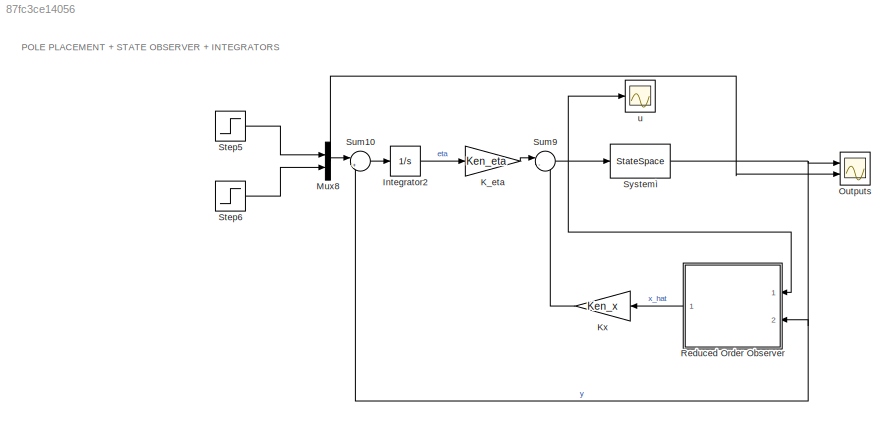
MODEL slx_87fc3ce14056
KIND model
CONFIG AbsTol = auto
CONFIG EnableMultiTasking = on
CONFIG FixedStep = auto
CONFIG MaxStep = auto
CONFIG MinStep = auto
CONFIG RelTol = 1e-3
CONFIG SampleTimeConstraint = Unconstrained
CONFIG SolverName = ode15s
CONFIG StartTime = 0.0
CONFIG StopTime = 200
BLOCK [Integrator] Integrator2
  Ports = [1, 1]
BLOCK [Gain] K_eta
  Gain = Ken_eta
  Multiplication = Matrix(K*u) (u vector)
BLOCK [Gain] Kx
  Gain = Ken_x
  Multiplication = Matrix(K*u) (u vector)
BLOCK [Mux] Mux8
  DisplayOption = bar
  Inputs = 2
  Ports = [2, 1]
BLOCK [Scope] Outputs
  Floating = off
  NumInputPorts = 2
  Ports = [2]
  ScopeSpecificationString = Simulink.scopes.TimeScopeBlockCfg('CurrentConfiguration', extmgr.ConfigurationSet(extmgr.Configuration('Core','General UI',true),extmgr.Configuration('Core','Source UI',true),extmgr.Configuration('Sources','WiredSimulink',true,'DataLoggingVariableName','ScopeData5'),extmgr.Configuration('Visuals','Time Domain',true,'SerializedDisplays',{struct('MinYLimReal','-0.72916','MaxYLimReal','1.3624','YLabe...<+2009ch>
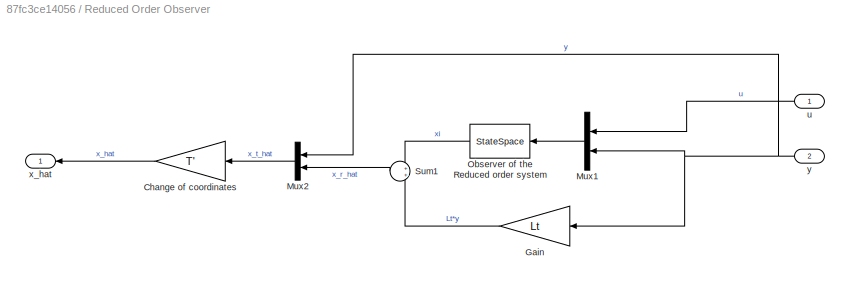
BLOCK [SubSystem] Reduced Order Observer
  Ports = [2, 1]
  RequestExecContextInheritance = off
BLOCK [Gain] Reduced Order Observer/Change of coordinates
  Gain = T'
  Multiplication = Matrix(K*u) (u vector)
BLOCK [Gain] Reduced Order Observer/Gain
  Gain = Lt
  Multiplication = Matrix(K*u) (u vector)
  NameLocation = top
BLOCK [Mux] Reduced Order Observer/Mux1
  DisplayOption = bar
  Inputs = 2
  NameLocation = top
  Ports = [2, 1]
BLOCK [Mux] Reduced Order Observer/Mux2
  DisplayOption = bar
  Inputs = 2
  NameLocation = top
  Ports = [2, 1]
BLOCK [StateSpace] Reduced Order Observer/Observer of the Reduced order system
  A = A_xi
  B = B_xi
  C = eye(5)
  D = zeros(5,4)
  InitialCondition = 0
  NameLocation = top
  Ports = [1, 1]
BLOCK [Sum] Reduced Order Observer/Sum1
  NameLocation = top
  Ports = [2, 1]
BLOCK [Inport] Reduced Order Observer/u
  NameLocation = top
BLOCK [Outport] Reduced Order Observer/x_hat
BLOCK [Inport] Reduced Order Observer/y
  NameLocation = top
  Port = 2
BLOCK [Step] Step5
  After = 1.04
  SampleTime = 0
  Time = 100
BLOCK [Step] Step6
  After = -0.52
  SampleTime = 0
  Time = 150
BLOCK [Sum] Sum10
  Inputs = |+-
  Ports = [2, 1]
BLOCK [Sum] Sum9
  Inputs = |--
  Ports = [2, 1]
BLOCK [StateSpace] Systemì
  A = A
  B = B
  C = C
  D = D
  InitialCondition = x0
  Ports = [1, 1]
BLOCK [Scope] u
  Floating = off
  NumInputPorts = 1
  Ports = [1]
  ScopeSpecificationString = Simulink.scopes.TimeScopeBlockCfg('CurrentConfiguration', extmgr.ConfigurationSet(extmgr.Configuration('Core','General UI',true),extmgr.Configuration('Core','Source UI',true),extmgr.Configuration('Sources','WiredSimulink',true,'DataLoggingVariableName','ScopeData6','DataLoggingSaveFormat','StructureWithTime','DataLoggingLimitDataPoints',true,'DataLoggingDecimation','1','DataLoggingDecimateData',tr...<+1978ch>
ANNOTATION (root): POLE PLACEMENT + STATE OBSERVER + INTEGRATORS
LINE Integrator2:1 -> K_eta:1
LINE K_eta:1 -> Sum9:1
LINE Kx:1 -> Sum9:2
NET Mux8:1 -> Outputs:2, Sum10:1
LINE Reduced Order Observer/Change of coordinates:1 -> Reduced Order Observer/x_hat:1
LINE Reduced Order Observer/Gain:1 -> Reduced Order Observer/Sum1:2
LINE Reduced Order Observer/Mux1:1 -> Reduced Order Observer/Observer of the Reduced order system:1
LINE Reduced Order Observer/Mux2:1 -> Reduced Order Observer/Change of coordinates:1
LINE Reduced Order Observer/Observer of the Reduced order system:1 -> Reduced Order Observer/Sum1:1
LINE Reduced Order Observer/Sum1:1 -> Reduced Order Observer/Mux2:2
LINE Reduced Order Observer/u:1 -> Reduced Order Observer/Mux1:1
NET Reduced Order Observer/y:1 -> Reduced Order Observer/Gain:1, Reduced Order Observer/Mux1:2, Reduced Order Observer/Mux2:1
LINE Reduced Order Observer:1 -> Kx:1
LINE Step5:1 -> Mux8:1
LINE Step6:1 -> Mux8:2
LINE Sum10:1 -> Integrator2:1
NET Sum9:1 -> Reduced Order Observer:1, Systemì:1, u:1
NET Systemì:1 -> Outputs:1, Reduced Order Observer:2, Sum10:2
note: NET lines group one-source signal fan-out (src -> all destinations, sorted); 1:1 wires keep LINE
